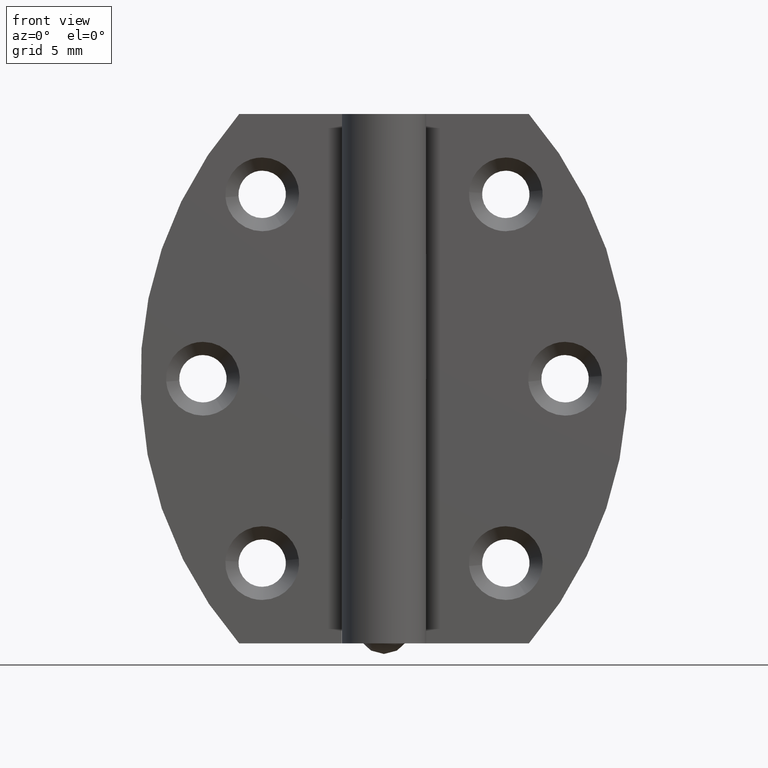
[diagram: clean part render]
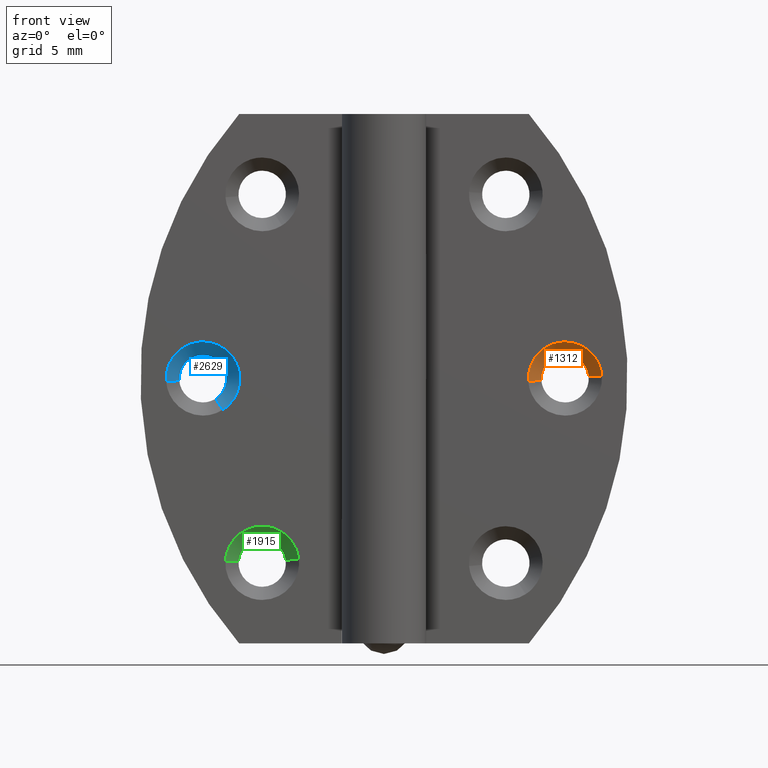
[diagram: same view with three faces highlighted in distinct colors, each labeled with its STEP entity id]
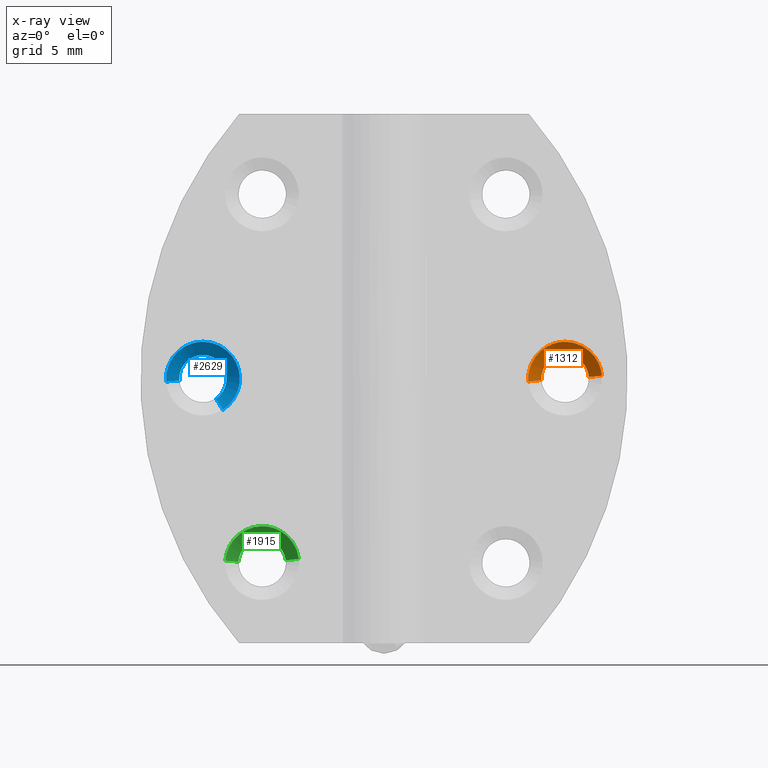
[diagram: x-ray of the same camera — body ghosted, the three highlighted faces saturated]
A machine part, front view with three faces highlighted in distinct colors.
The next image is the same camera in x-ray (body ghosted, the three faces saturated) — at least one of them is partly hidden behind the body in this view.
Their STEP definitions:

[orange] entity #1312 — the highlighted face is a freeform B-spline surface patch.
#1117=CARTESIAN_POINT('',(11.953357349069069,2.999999999999047,19.990116854000991));
#1118=VERTEX_POINT('',#1117);
#1162=CARTESIAN_POINT('',(15.544451200723319,2.999999999990875,20.241230372379579));
#1163=VERTEX_POINT('',#1162);
#1179=CARTESIAN_POINT('',(13.750000000000000,3.0,21.900003999999999));
#1180=VERTEX_POINT('',#1179);
#1181=CARTESIAN_POINT('',(13.750000000000000,3.0,21.900003999999999));
#1182=CARTESIAN_POINT('',(15.413902884856887,3.000000000000000,21.900003999999992));
#1183=CARTESIAN_POINT('',(15.544451200723312,2.999999999990875,20.241230372379587));
#1191=(BOUNDED_CURVE()B_SPLINE_CURVE(2,(#1181,#1182,#1183),.UNSPECIFIED.,.F.,.U.)B_SPLINE_CURVE_WITH_KNOTS((3,3),(0.0,0.236331300619633),.UNSPECIFIED.)CURVE()GEOMETRIC_REPRESENTATION_ITEM()RATIONAL_B_SPLINE_CURVE((1.0,0.723120658620585,0.969723356144405))REPRESENTATION_ITEM(''));
#1192=EDGE_CURVE('',#1180,#1163,#1191,.T.);
#1194=CARTESIAN_POINT('',(11.953357349069062,2.999999999999047,19.990116854000984));
#1195=CARTESIAN_POINT('',(11.949999999999998,3.000000000000000,20.045009138960076));
#1196=CARTESIAN_POINT('',(11.949999999999999,3.0,20.100003999999998));
#1197=CARTESIAN_POINT('',(11.949999999999999,3.000000000000000,21.900003999999992));
#1198=CARTESIAN_POINT('',(13.750000000000000,3.0,21.900003999999999));
#1206=(BOUNDED_CURVE()B_SPLINE_CURVE(2,(#1194,#1195,#1196,#1197,#1198),.UNSPECIFIED.,.F.,.U.)B_SPLINE_CURVE_WITH_KNOTS((3,2,3),(0.739332983866346,0.750000000000000,1.0),.UNSPECIFIED.)CURVE()GEOMETRIC_REPRESENTATION_ITEM()RATIONAL_B_SPLINE_CURVE((0.976072088018364,0.987502813237917,1.0,0.707106781186547,1.0))REPRESENTATION_ITEM(''));
#1207=EDGE_CURVE('',#1118,#1180,#1206,.T.);
#1246=CARTESIAN_POINT('',(15.519528267376300,3.025000000000000,20.239268894916929));
#1247=CARTESIAN_POINT('',(15.380263372459369,3.025000000000001,22.008797162293234));
#1248=CARTESIAN_POINT('',(13.610735105083080,3.025000000000000,21.869532267376300));
#1249=CARTESIAN_POINT('',(11.841206837706777,3.025000000000001,21.730267372459370));
#1250=CARTESIAN_POINT('',(11.980471732623700,3.025000000000000,19.960739105083078));
#1251=CARTESIAN_POINT('',(16.566914541129670,1.974375000000000,20.321699982365999));
#1252=CARTESIAN_POINT('',(16.345218558763673,1.974375000000000,23.138614523495665));
#1253=CARTESIAN_POINT('',(13.528304017634010,1.974375000000000,22.916918541129672));
#1254=CARTESIAN_POINT('',(10.711389476504339,1.974375000000000,22.695222558763685));
#1255=CARTESIAN_POINT('',(10.933085458870330,1.974375000000000,19.878308017634009));
#1263=(BOUNDED_SURFACE()B_SPLINE_SURFACE(2,1,((#1246,#1251),(#1247,#1252),(#1248,#1253),(#1249,#1254),(#1250,#1255)),.UNSPECIFIED.,.F.,.F.,.U.)B_SPLINE_SURFACE_WITH_KNOTS((3,2,3),(2,2),(0.0,4.681648788721907,9.363297577443815),(0.0,1.0),.UNSPECIFIED.)GEOMETRIC_REPRESENTATION_ITEM()RATIONAL_B_SPLINE_SURFACE(((1.0,1.0),(0.707106781186548,0.707106781186548),(1.0,1.0),(0.707106781186548,0.707106781186548),(1.0,1.0)))REPRESENTATION_ITEM('')SURFACE());
#1264=ORIENTED_EDGE('',*,*,#1192,.T.);
#1265=CARTESIAN_POINT('',(16.541368534458289,1.999999999986249,20.319689468142968));
#1266=VERTEX_POINT('',#1265);
#1267=CARTESIAN_POINT('',(15.544451200723319,2.999999999990875,20.241230372379579));
#1268=CARTESIAN_POINT('',(16.541368534458289,1.999999999986249,20.319689468142968));
#1269=QUASI_UNIFORM_CURVE('',1,(#1267,#1268),.UNSPECIFIED.,.F.,.U.);
#1270=EDGE_CURVE('',#1163,#1266,#1269,.T.);
#1271=ORIENTED_EDGE('',*,*,#1270,.T.);
#1272=CARTESIAN_POINT('',(13.750000000000000,2.0,22.900003999999999));
#1273=VERTEX_POINT('',#1272);
#1274=CARTESIAN_POINT('',(13.750000000000000,2.0,22.900003999999999));
#1275=CARTESIAN_POINT('',(16.338293376449659,2.000000000000000,22.900004000000003));
#1276=CARTESIAN_POINT('',(16.541368534458286,1.999999999986249,20.319689468142965));
#1284=(BOUNDED_CURVE()B_SPLINE_CURVE(2,(#1274,#1275,#1276),.UNSPECIFIED.,.F.,.U.)B_SPLINE_CURVE_WITH_KNOTS((3,3),(0.0,0.236331300620003),.UNSPECIFIED.)CURVE()GEOMETRIC_REPRESENTATION_ITEM()RATIONAL_B_SPLINE_CURVE((1.0,0.723120658620150,0.969723356145178))REPRESENTATION_ITEM(''));
#1285=EDGE_CURVE('',#1273,#1266,#1284,.T.);
#1286=ORIENTED_EDGE('',*,*,#1285,.F.);
#1287=CARTESIAN_POINT('',(10.958631465541711,1.999999999986249,19.880318531857039));
#1288=VERTEX_POINT('',#1287);
#1289=CARTESIAN_POINT('',(10.958631465541712,1.999999999986250,19.880318531857036));
#1290=CARTESIAN_POINT('',(10.949999999999996,2.000000000000000,19.989991700274128));
#1291=CARTESIAN_POINT('',(10.949999999999999,2.0,20.100003999999998));
#1292=CARTESIAN_POINT('',(10.949999999999999,2.0,22.900003999999996));
#1293=CARTESIAN_POINT('',(13.750000000000000,2.0,22.900003999999999));
#1301=(BOUNDED_CURVE()B_SPLINE_CURVE(2,(#1289,#1290,#1291,#1292,#1293),.UNSPECIFIED.,.F.,.U.)B_SPLINE_CURVE_WITH_KNOTS((3,2,3),(0.736331300620003,0.750000000000000,1.0),.UNSPECIFIED.)CURVE()GEOMETRIC_REPRESENTATION_ITEM()RATIONAL_B_SPLINE_CURVE((0.969723356145178,0.983986122566397,1.0,0.707106781186547,1.0))REPRESENTATION_ITEM(''));
#1302=EDGE_CURVE('',#1288,#1273,#1301,.T.);
#1303=ORIENTED_EDGE('',*,*,#1302,.F.);
#1304=CARTESIAN_POINT('',(11.953357349069069,2.999999999999047,19.990116854000991));
#1305=CARTESIAN_POINT('',(10.958631465541711,1.999999999986249,19.880318531857039));
#1306=QUASI_UNIFORM_CURVE('',1,(#1304,#1305),.UNSPECIFIED.,.F.,.U.);
#1307=EDGE_CURVE('',#1118,#1288,#1306,.T.);
#1308=ORIENTED_EDGE('',*,*,#1307,.F.);
#1309=ORIENTED_EDGE('',*,*,#1207,.T.);
#1310=EDGE_LOOP('',(#1264,#1271,#1286,#1303,#1308,#1309));
#1311=FACE_OUTER_BOUND('',#1310,.T.);
#1312=ADVANCED_FACE('',(#1311),#1263,.F.);

[blue] entity #2629 — the highlighted face is a freeform B-spline surface patch.
#2493=CARTESIAN_POINT('',(-12.795314841632988,3.025000000000000,18.603607913265694));
#2494=CARTESIAN_POINT('',(-11.896854879194814,3.025000000000000,19.176816035854824));
#2495=CARTESIAN_POINT('',(-11.980471732623700,3.025000000000000,20.239268894916929));
#2496=CARTESIAN_POINT('',(-12.119736627540625,3.025000000000001,22.008797162293234));
#2497=CARTESIAN_POINT('',(-13.889264894916931,3.025000000000000,21.869532267376300));
#2498=CARTESIAN_POINT('',(-15.658793162293222,3.025000000000001,21.730267372459380));
#2499=CARTESIAN_POINT('',(-15.519528267376300,3.025000000000000,19.960739105083078));
#2500=CARTESIAN_POINT('',(-12.230235351768568,1.974375000000000,17.717888961927532));
#2501=CARTESIAN_POINT('',(-10.799975672126678,1.974375000000000,18.630379779612571));
#2502=CARTESIAN_POINT('',(-10.933085458870330,1.974375000000000,20.321699982365999));
#2503=CARTESIAN_POINT('',(-11.154781441236327,1.974375000000000,23.138614523495665));
#2504=CARTESIAN_POINT('',(-13.971695982365990,1.974375000000000,22.916918541129672));
#2505=CARTESIAN_POINT('',(-16.788610523495667,1.974375000000000,22.695222558763668));
#2506=CARTESIAN_POINT('',(-16.566914541129670,1.974375000000000,19.878308017634009));
#2514=(BOUNDED_SURFACE()B_SPLINE_SURFACE(2,1,((#2493,#2500),(#2494,#2501),(#2495,#2502),(#2496,#2503),(#2497,#2504),(#2498,#2505),(#2499,#2506)),.UNSPECIFIED.,.F.,.F.,.U.)B_SPLINE_SURFACE_WITH_KNOTS((3,2,2,3),(2,2),(0.0,3.183521176330893,7.865169965052795,12.546818753774700),(0.0,1.0),.UNSPECIFIED.)GEOMETRIC_REPRESENTATION_ITEM()RATIONAL_B_SPLINE_SURFACE(((0.872532871172386,0.872532871172386),(0.800832611206852,0.800832611206852),(1.0,1.0),(0.707106781186548,0.707106781186548),(1.0,1.0),(0.707106781186548,0.707106781186548),(1.0,1.0)))REPRESENTATION_ITEM('')SURFACE());
#2515=CARTESIAN_POINT('',(-11.962582852550550,3.0,20.312465622425531));
#2516=VERTEX_POINT('',#2515);
#2517=CARTESIAN_POINT('',(-12.781868571650710,2.999999999991311,18.582531912126999));
#2518=VERTEX_POINT('',#2517);
#2519=CARTESIAN_POINT('',(-11.962582852550554,3.0,20.312465622425524));
#2520=CARTESIAN_POINT('',(-11.950000000000005,3.0,20.206607415417263));
#2521=CARTESIAN_POINT('',(-11.949999999999999,3.0,20.100003999999998));
#2522=CARTESIAN_POINT('',(-11.950000000000001,2.999999999999999,19.113255419391731));
#2523=CARTESIAN_POINT('',(-12.781868571650707,2.999999999991311,18.582531912126999));
#2531=(BOUNDED_CURVE()B_SPLINE_CURVE(2,(#2519,#2520,#2521,#2522,#2523),.UNSPECIFIED.,.F.,.U.)B_SPLINE_CURVE_WITH_KNOTS((3,2,3),(0.229562473507444,0.250000000000000,0.407950112599104),.UNSPECIFIED.)CURVE()GEOMETRIC_REPRESENTATION_ITEM()RATIONAL_B_SPLINE_CURVE((0.956026754171814,0.976055948324041,1.0,0.814949932435605,0.863729296937354))REPRESENTATION_ITEM(''));
#2532=EDGE_CURVE('',#2516,#2518,#2531,.T.);
#2533=ORIENTED_EDGE('',*,*,#2532,.T.);
#2534=CARTESIAN_POINT('',(-12.244017778232520,1.999999999992799,17.739491863246499));
#2535=VERTEX_POINT('',#2534);
#2536=CARTESIAN_POINT('',(-12.781868571650710,2.999999999991311,18.582531912126999));
#2537=CARTESIAN_POINT('',(-12.244017778232520,1.999999999992799,17.739491863246499));
#2538=QUASI_UNIFORM_CURVE('',1,(#2536,#2537),.UNSPECIFIED.,.F.,.U.);
#2539=EDGE_CURVE('',#2518,#2535,#2538,.T.);
#2540=ORIENTED_EDGE('',*,*,#2539,.T.);
#2541=CARTESIAN_POINT('',(-13.750000000000000,2.0,22.900003999999999));
#2542=VERTEX_POINT('',#2541);
#2543=CARTESIAN_POINT('',(-13.750000000000000,2.0,22.900003999999999));
#2544=CARTESIAN_POINT('',(-10.949999999999999,2.0,22.900003999999996));
#2545=CARTESIAN_POINT('',(-10.949999999999999,2.0,20.100003999999998));
#2546=CARTESIAN_POINT('',(-10.949999999999999,2.0,18.565061763335045));
#2547=CARTESIAN_POINT('',(-12.244017778232514,1.999999999992799,17.739491863246506));
#2555=(BOUNDED_CURVE()B_SPLINE_CURVE(2,(#2543,#2544,#2545,#2546,#2547),.UNSPECIFIED.,.F.,.U.)B_SPLINE_CURVE_WITH_KNOTS((3,2,3),(0.0,0.250000000000000,0.407950112612791),.UNSPECIFIED.)CURVE()GEOMETRIC_REPRESENTATION_ITEM()RATIONAL_B_SPLINE_CURVE((1.0,0.707106781186547,1.0,0.814949932419569,0.863729296945808))REPRESENTATION_ITEM(''));
#2556=EDGE_CURVE('',#2542,#2535,#2555,.T.);
#2557=ORIENTED_EDGE('',*,*,#2556,.F.);
#2558=CARTESIAN_POINT('',(-16.541368534458289,1.999999999986249,19.880318531857039));
#2559=VERTEX_POINT('',#2558);
#2560=CARTESIAN_POINT('',(-16.541368534458286,1.999999999986249,19.880318531857036));
#2561=CARTESIAN_POINT('',(-16.549999999999994,2.000000000000000,19.989991700274128));
#2562=CARTESIAN_POINT('',(-16.550000000000001,2.0,20.100003999999998));
#2563=CARTESIAN_POINT('',(-16.550000000000001,2.0,22.900003999999996));
#2564=CARTESIAN_POINT('',(-13.750000000000000,2.0,22.900003999999999));
#2572=(BOUNDED_CURVE()B_SPLINE_CURVE(2,(#2560,#2561,#2562,#2563,#2564),.UNSPECIFIED.,.F.,.U.)B_SPLINE_CURVE_WITH_KNOTS((3,2,3),(0.736331300620003,0.750000000000000,1.0),.UNSPECIFIED.)CURVE()GEOMETRIC_REPRESENTATION_ITEM()RATIONAL_B_SPLINE_CURVE((0.969723356145178,0.983986122566397,1.0,0.707106781186547,1.0))REPRESENTATION_ITEM(''));
#2573=EDGE_CURVE('',#2559,#2542,#2572,.T.);
#2574=ORIENTED_EDGE('',*,*,#2573,.F.);
#2575=CARTESIAN_POINT('',(-15.544451200727650,2.999999999980107,19.958777627538250));
#2576=VERTEX_POINT('',#2575);
#2577=CARTESIAN_POINT('',(-15.544451200727650,2.999999999980107,19.958777627538250));
#2578=CARTESIAN_POINT('',(-16.541368534458289,1.999999999986249,19.880318531857039));
#2579=QUASI_UNIFORM_CURVE('',1,(#2577,#2578),.UNSPECIFIED.,.F.,.U.);
#2580=EDGE_CURVE('',#2576,#2559,#2579,.T.);
#2581=ORIENTED_EDGE('',*,*,#2580,.F.);
#2582=CARTESIAN_POINT('',(-15.546642637158911,3.0,19.990116628829970));
#2583=VERTEX_POINT('',#2582);
#2584=CARTESIAN_POINT('',(-15.544451200727647,2.999999999980107,19.958777627538254));
#2585=CARTESIAN_POINT('',(-15.545683664589593,3.000000000000001,19.974437565918002));
#2586=CARTESIAN_POINT('',(-15.546642637158918,3.0,19.990116628829970));
#2594=(BOUNDED_CURVE()B_SPLINE_CURVE(2,(#2584,#2585,#2586),.UNSPECIFIED.,.F.,.U.)B_SPLINE_CURVE_WITH_KNOTS((3,3),(0.736331300604096,0.739332962240570),.UNSPECIFIED.)CURVE()GEOMETRIC_REPRESENTATION_ITEM()RATIONAL_B_SPLINE_CURVE((0.969723356111981,0.972855475533167,0.976072041670205))REPRESENTATION_ITEM(''));
#2595=EDGE_CURVE('',#2576,#2583,#2594,.T.);
#2596=ORIENTED_EDGE('',*,*,#2595,.T.);
#2597=CARTESIAN_POINT('',(-13.750000000000000,3.0,21.900003999999999));
#2598=VERTEX_POINT('',#2597);
#2599=CARTESIAN_POINT('',(-15.546642637158918,3.000000000000000,19.990116628829970));
#2600=CARTESIAN_POINT('',(-15.550000000000001,3.000000000000000,20.045009026055233));
#2601=CARTESIAN_POINT('',(-15.550000000000001,3.0,20.100003999999998));
#2602=CARTESIAN_POINT('',(-15.549999999999995,3.000000000000000,21.900003999999992));
#2603=CARTESIAN_POINT('',(-13.750000000000000,3.0,21.900003999999999));
#2611=(BOUNDED_CURVE()B_SPLINE_CURVE(2,(#2599,#2600,#2601,#2602,#2603),.UNSPECIFIED.,.F.,.U.)B_SPLINE_CURVE_WITH_KNOTS((3,2,3),(0.739332962240569,0.750000000000000,1.0),.UNSPECIFIED.)CURVE()GEOMETRIC_REPRESENTATION_ITEM()RATIONAL_B_SPLINE_CURVE((0.976072041670203,0.987502787901743,1.0,0.707106781186547,1.0))REPRESENTATION_ITEM(''));
#2612=EDGE_CURVE('',#2583,#2598,#2611,.T.);
#2613=ORIENTED_EDGE('',*,*,#2612,.T.);
#2614=CARTESIAN_POINT('',(-13.750000000000000,3.0,21.900003999999999));
#2615=CARTESIAN_POINT('',(-12.151285853365655,3.000000000000001,21.900003999999999));
#2616=CARTESIAN_POINT('',(-11.962582852550554,3.0,20.312465622425524));
#2624=(BOUNDED_CURVE()B_SPLINE_CURVE(2,(#2614,#2615,#2616),.UNSPECIFIED.,.F.,.U.)B_SPLINE_CURVE_WITH_KNOTS((3,3),(0.0,0.229562473507444),.UNSPECIFIED.)CURVE()GEOMETRIC_REPRESENTATION_ITEM()RATIONAL_B_SPLINE_CURVE((1.0,0.731050832862507,0.956026754171814))REPRESENTATION_ITEM(''));
#2625=EDGE_CURVE('',#2598,#2516,#2624,.T.);
#2626=ORIENTED_EDGE('',*,*,#2625,.T.);
#2627=EDGE_LOOP('',(#2533,#2540,#2557,#2574,#2581,#2596,#2613,#2626));
#2628=FACE_OUTER_BOUND('',#2627,.T.);
#2629=ADVANCED_FACE('',(#2628),#2514,.F.);

[green] entity #1915 — the highlighted face is a freeform B-spline surface patch.
#1821=CARTESIAN_POINT('',(-7.486592181651710,3.025000000000000,6.302539679914030));
#1822=CARTESIAN_POINT('',(-7.656378104159805,3.025000000000000,7.780857828845831));
#1823=CARTESIAN_POINT('',(-9.141638842325728,3.025000000000000,7.871700267198702));
#1824=CARTESIAN_POINT('',(-10.913328109524540,3.025000000000001,7.980061424873073));
#1825=CARTESIAN_POINT('',(-11.021689267198910,3.025000000000000,6.208372157674260));
#1826=CARTESIAN_POINT('',(-6.442828610298310,1.974375000000000,6.422416690806871));
#1827=CARTESIAN_POINT('',(-6.713111059474051,1.974375000000000,8.775753434229646));
#1828=CARTESIAN_POINT('',(-9.077499720476919,1.974375000000000,8.920365639790678));
#1829=CARTESIAN_POINT('',(-11.897854360267708,1.974375000000000,9.092865919313859));
#1830=CARTESIAN_POINT('',(-12.070354639790891,1.974375000000000,6.272511279523069));
#1838=(BOUNDED_SURFACE()B_SPLINE_SURFACE(2,1,((#1821,#1826),(#1822,#1827),(#1823,#1828),(#1824,#1829),(#1825,#1830)),.UNSPECIFIED.,.F.,.F.,.U.)B_SPLINE_SURFACE_WITH_KNOTS((3,2,3),(2,2),(0.0,4.119850934075279,8.801499722797189),(0.0,1.0),.UNSPECIFIED.)GEOMETRIC_REPRESENTATION_ITEM()RATIONAL_B_SPLINE_SURFACE(((0.938140952186599,0.938140952186599),(0.742253967444162,0.742253967444162),(1.0,1.0),(0.707106781186548,0.707106781186548),(1.0,1.0)))REPRESENTATION_ITEM('')SURFACE());
#1839=CARTESIAN_POINT('',(-7.461755451748724,2.999999999895600,6.305392196863352));
#1840=VERTEX_POINT('',#1839);
#1841=CARTESIAN_POINT('',(-9.250000000000100,3.0,7.900010999999889));
#1842=VERTEX_POINT('',#1841);
#1843=CARTESIAN_POINT('',(-7.461755451748724,2.999999999895600,6.305392196863353));
#1844=CARTESIAN_POINT('',(-7.644898590282302,3.000000000000000,7.900010999999888));
#1845=CARTESIAN_POINT('',(-9.250000000000100,3.0,7.900010999999889));
#1853=(BOUNDED_CURVE()B_SPLINE_CURVE(2,(#1843,#1844,#1845),.UNSPECIFIED.,.F.,.U.)B_SPLINE_CURVE_WITH_KNOTS((3,3),(0.269767755936970,0.500000000000000),.UNSPECIFIED.)CURVE()GEOMETRIC_REPRESENTATION_ITEM()RATIONAL_B_SPLINE_CURVE((0.957343736341597,0.730266147846939,1.0))REPRESENTATION_ITEM(''));
#1854=EDGE_CURVE('',#1840,#1842,#1853,.T.);
#1855=ORIENTED_EDGE('',*,*,#1854,.F.);
#1856=CARTESIAN_POINT('',(-6.468286258364393,1.999999999980956,6.419492861303040));
#1857=VERTEX_POINT('',#1856);
#1858=CARTESIAN_POINT('',(-7.461755451748724,2.999999999895600,6.305392196863352));
#1859=CARTESIAN_POINT('',(-6.468286258364393,1.999999999980956,6.419492861303040));
#1860=QUASI_UNIFORM_CURVE('',1,(#1858,#1859),.UNSPECIFIED.,.F.,.U.);
#1861=EDGE_CURVE('',#1840,#1857,#1860,.T.);
#1862=ORIENTED_EDGE('',*,*,#1861,.T.);
#1863=CARTESIAN_POINT('',(-9.250000000000100,2.0,8.900010999999891));
#1864=VERTEX_POINT('',#1863);
#1865=CARTESIAN_POINT('',(-6.468286258364393,1.999999999980956,6.419492861303040));
#1866=CARTESIAN_POINT('',(-6.753175584037679,2.000000000000000,8.900010999999891));
#1867=CARTESIAN_POINT('',(-9.250000000000100,2.0,8.900010999999891));
#1875=(BOUNDED_CURVE()B_SPLINE_CURVE(2,(#1865,#1866,#1867),.UNSPECIFIED.,.F.,.U.)B_SPLINE_CURVE_WITH_KNOTS((3,3),(0.269767755880012,0.500000000000000),.UNSPECIFIED.)CURVE()GEOMETRIC_REPRESENTATION_ITEM()RATIONAL_B_SPLINE_CURVE((0.957343736453951,0.730266147780209,1.0))REPRESENTATION_ITEM(''));
#1876=EDGE_CURVE('',#1857,#1864,#1875,.T.);
#1877=ORIENTED_EDGE('',*,*,#1876,.T.);
#1878=CARTESIAN_POINT('',(-12.044777670404880,1.999999660397930,6.270948634169848));
#1879=VERTEX_POINT('',#1878);
#1880=CARTESIAN_POINT('',(-9.250000000000100,2.0,8.900010999999891));
#1881=CARTESIAN_POINT('',(-11.883975379566614,2.000000000000000,8.900010999999891));
#1882=CARTESIAN_POINT('',(-12.044777670404878,1.999999660397931,6.270948634169848));
#1890=(BOUNDED_CURVE()B_SPLINE_CURVE(2,(#1880,#1881,#1882),.UNSPECIFIED.,.F.,.U.)B_SPLINE_CURVE_WITH_KNOTS((3,3),(0.500000000000000,0.739332857116499),.UNSPECIFIED.)CURVE()GEOMETRIC_REPRESENTATION_ITEM()RATIONAL_B_SPLINE_CURVE((1.0,0.719604116445313,0.976071816369414))REPRESENTATION_ITEM(''));
#1891=EDGE_CURVE('',#1864,#1879,#1890,.T.);
#1892=ORIENTED_EDGE('',*,*,#1891,.T.);
#1893=CARTESIAN_POINT('',(-11.046642637159330,2.999999999999996,6.209898371164835));
#1894=VERTEX_POINT('',#1893);
#1895=CARTESIAN_POINT('',(-11.046642637159330,2.999999999999996,6.209898371164835));
#1896=CARTESIAN_POINT('',(-12.044777670404880,1.999999660397930,6.270948634169848));
#1897=QUASI_UNIFORM_CURVE('',1,(#1895,#1896),.UNSPECIFIED.,.F.,.U.);
#1898=EDGE_CURVE('',#1894,#1879,#1897,.T.);
#1899=ORIENTED_EDGE('',*,*,#1898,.F.);
#1900=CARTESIAN_POINT('',(-9.250000000000100,3.0,7.900010999999889));
#1901=CARTESIAN_POINT('',(-10.943270920428272,3.0,7.900010999999891));
#1902=CARTESIAN_POINT('',(-11.046642637159328,3.000000000000001,6.209898371164834));
#1910=(BOUNDED_CURVE()B_SPLINE_CURVE(2,(#1900,#1901,#1902),.UNSPECIFIED.,.F.,.U.)B_SPLINE_CURVE_WITH_KNOTS((3,3),(0.500000000000000,0.739332962241757),.UNSPECIFIED.)CURVE()GEOMETRIC_REPRESENTATION_ITEM()RATIONAL_B_SPLINE_CURVE((1.0,0.719603993283413,0.976072041672748))REPRESENTATION_ITEM(''));
#1911=EDGE_CURVE('',#1842,#1894,#1910,.T.);
#1912=ORIENTED_EDGE('',*,*,#1911,.F.);
#1913=EDGE_LOOP('',(#1855,#1862,#1877,#1892,#1899,#1912));
#1914=FACE_OUTER_BOUND('',#1913,.T.);
#1915=ADVANCED_FACE('',(#1914),#1838,.F.);